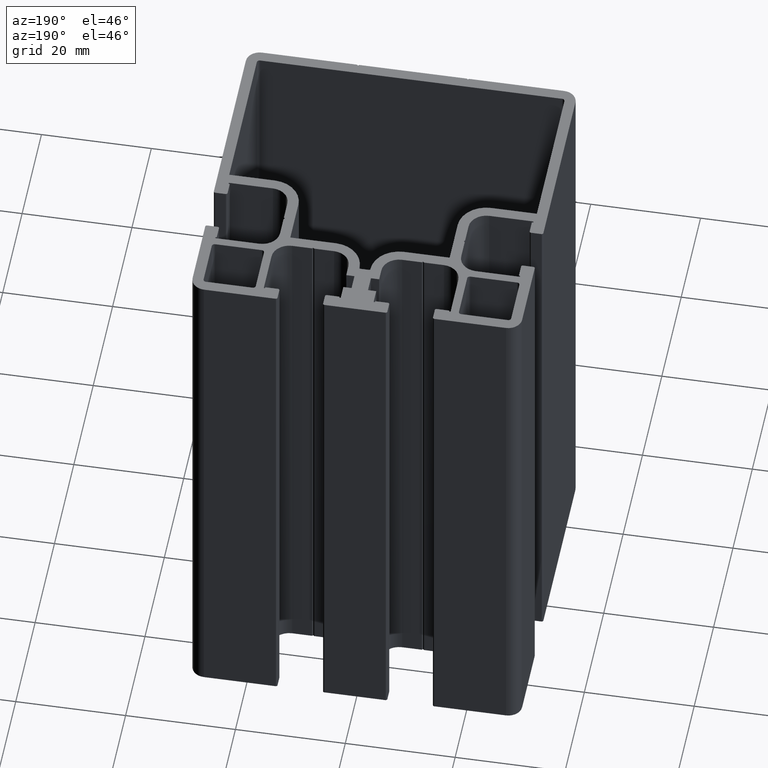
[diagram: clean part render]
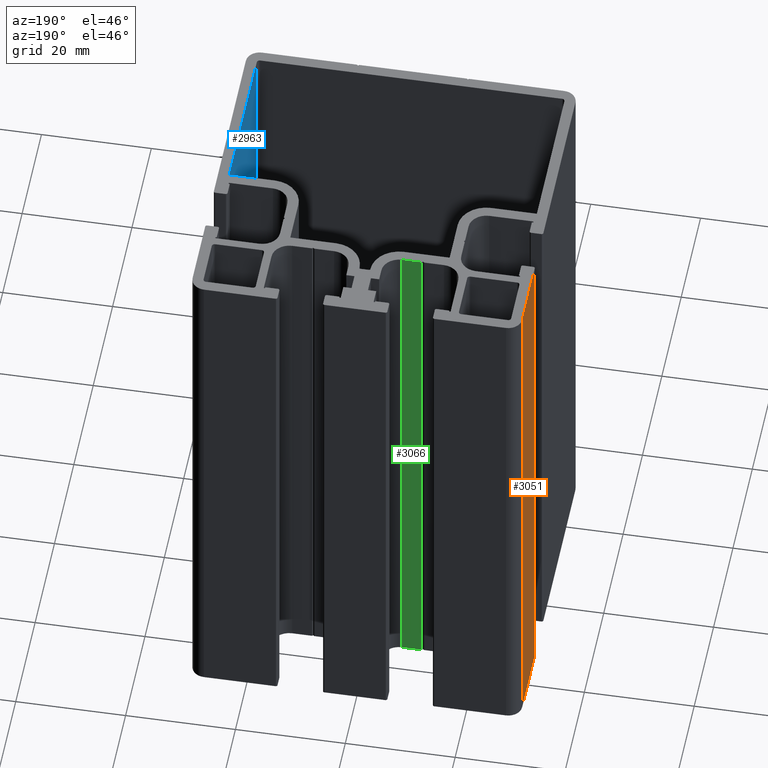
[diagram: same view with three faces highlighted in distinct colors, each labeled with its STEP entity id]
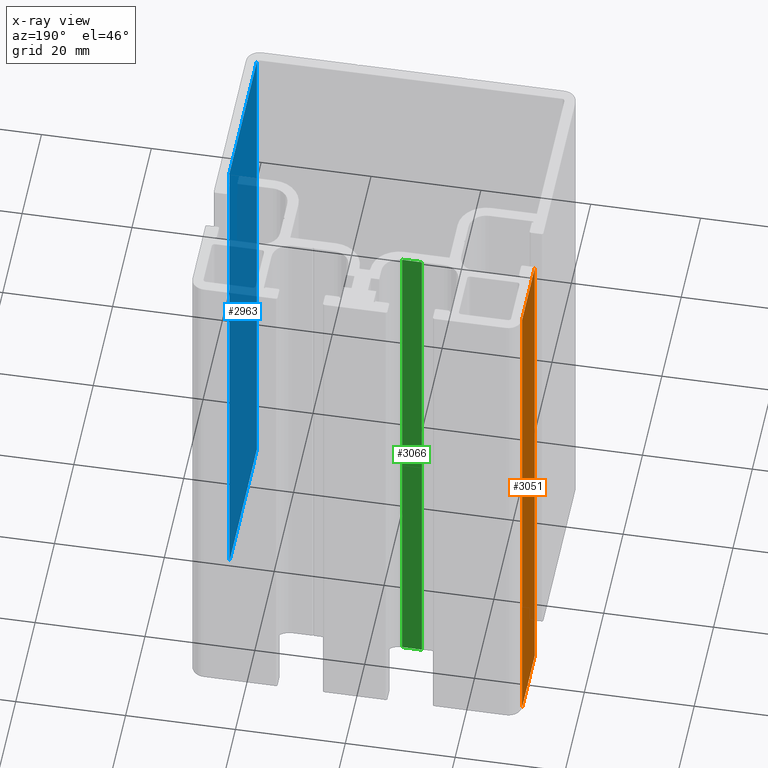
[diagram: x-ray of the same camera — body ghosted, the three highlighted faces saturated]
A machine part, auxiliary view with three faces highlighted in distinct colors.
The next image is the same camera in x-ray (body ghosted, the three faces saturated) — at least one of them is partly hidden behind the body in this view.
Their STEP definitions:

[orange] entity #3051 — the highlighted planar face has unit normal (-1, -0, 0).
#299=FACE_OUTER_BOUND('',#453,.T.);
#453=EDGE_LOOP('',(#2339,#2340,#2341,#2342));
#729=LINE('',#4860,#1065);
#730=LINE('',#4863,#1066);
#731=LINE('',#4865,#1067);
#732=LINE('',#4866,#1068);
#1065=VECTOR('',#3955,100.);
#1066=VECTOR('',#3958,13.05);
#1067=VECTOR('',#3959,13.05);
#1068=VECTOR('',#3960,100.);
#1383=VERTEX_POINT('',#4856);
#1384=VERTEX_POINT('',#4858);
#1385=VERTEX_POINT('',#4862);
#1386=VERTEX_POINT('',#4864);
#1785=EDGE_CURVE('',#1383,#1384,#729,.T.);
#1786=EDGE_CURVE('',#1383,#1385,#730,.T.);
#1787=EDGE_CURVE('',#1386,#1384,#731,.T.);
#1788=EDGE_CURVE('',#1385,#1386,#732,.T.);
#2339=ORIENTED_EDGE('',*,*,#1786,.F.);
#2340=ORIENTED_EDGE('',*,*,#1785,.T.);
#2341=ORIENTED_EDGE('',*,*,#1787,.F.);
#2342=ORIENTED_EDGE('',*,*,#1788,.F.);
#2917=PLANE('',#3287);
#3051=ADVANCED_FACE('',(#299),#2917,.T.);
#3287=AXIS2_PLACEMENT_3D('',#4861,#3956,#3957);
#3955=DIRECTION('',(0.,0.,1.));
#3956=DIRECTION('center_axis',(-1.,-1.36119298038333E-15,0.));
#3957=DIRECTION('ref_axis',(1.4210854715202E-15,-1.,0.));
#3958=DIRECTION('',(-1.36119298038333E-15,1.,0.));
#3959=DIRECTION('',(1.36119298038333E-15,-1.,0.));
#3960=DIRECTION('',(0.,0.,1.));
#4856=CARTESIAN_POINT('',(-30.0000000000019,14.4500000000001,0.));
#4858=CARTESIAN_POINT('',(-30.0000000000019,14.4500000000001,100.));
#4860=CARTESIAN_POINT('',(-30.0000000000019,14.4500000000001,0.));
#4861=CARTESIAN_POINT('Origin',(-30.0000000000019,27.5000000000001,0.));
#4862=CARTESIAN_POINT('',(-30.0000000000019,27.5000000000001,0.));
#4863=CARTESIAN_POINT('',(-30.0000000000019,14.4500000000001,0.));
#4864=CARTESIAN_POINT('',(-30.0000000000019,27.5000000000001,100.));
#4865=CARTESIAN_POINT('',(-30.0000000000019,14.4500000000001,100.));
#4866=CARTESIAN_POINT('',(-30.0000000000019,27.5000000000001,0.));

[blue] entity #2963 — the highlighted planar face has unit normal (1, -0, 0).
#211=FACE_OUTER_BOUND('',#365,.T.);
#365=EDGE_LOOP('',(#1987,#1988,#1989,#1990));
#536=LINE('',#4331,#872);
#538=LINE('',#4335,#874);
#539=LINE('',#4337,#875);
#540=LINE('',#4338,#876);
#872=VECTOR('',#3442,100.);
#874=VECTOR('',#3446,28.5);
#875=VECTOR('',#3447,100.);
#876=VECTOR('',#3448,28.5);
#1207=VERTEX_POINT('',#4328);
#1208=VERTEX_POINT('',#4330);
#1209=VERTEX_POINT('',#4334);
#1210=VERTEX_POINT('',#4336);
#1520=EDGE_CURVE('',#1207,#1208,#536,.T.);
#1522=EDGE_CURVE('',#1209,#1207,#538,.T.);
#1523=EDGE_CURVE('',#1209,#1210,#539,.T.);
#1524=EDGE_CURVE('',#1208,#1210,#540,.T.);
#1987=ORIENTED_EDGE('',*,*,#1522,.F.);
#1988=ORIENTED_EDGE('',*,*,#1523,.T.);
#1989=ORIENTED_EDGE('',*,*,#1524,.F.);
#1990=ORIENTED_EDGE('',*,*,#1520,.F.);
#2865=PLANE('',#3127);
#2963=ADVANCED_FACE('',(#211),#2865,.F.);
#3127=AXIS2_PLACEMENT_3D('',#4333,#3444,#3445);
#3442=DIRECTION('',(0.,0.,1.));
#3444=DIRECTION('center_axis',(1.,-1.55820775385987E-16,0.));
#3445=DIRECTION('ref_axis',(0.,1.,0.));
#3446=DIRECTION('',(1.55820775385987E-16,1.,0.));
#3447=DIRECTION('',(0.,0.,1.));
#3448=DIRECTION('',(-1.55820775385987E-16,-1.,0.));
#4328=CARTESIAN_POINT('',(28.,1.,0.));
#4330=CARTESIAN_POINT('',(28.,0.999999999999999,100.));
#4331=CARTESIAN_POINT('',(28.,1.,0.));
#4333=CARTESIAN_POINT('Origin',(28.,-27.5,0.));
#4334=CARTESIAN_POINT('',(28.,-27.5,0.));
#4335=CARTESIAN_POINT('',(28.,-10.8727550179065,0.));
#4336=CARTESIAN_POINT('',(28.,-27.5,100.));
#4337=CARTESIAN_POINT('',(28.,-27.5,0.));
#4338=CARTESIAN_POINT('',(28.,-10.8727550179065,100.));

[green] entity #3066 — the highlighted planar face has unit normal (-0, 1, 0).
#314=FACE_OUTER_BOUND('',#468,.T.);
#468=EDGE_LOOP('',(#2399,#2400,#2401,#2402));
#762=LINE('',#4950,#1098);
#763=LINE('',#4953,#1099);
#764=LINE('',#4955,#1100);
#765=LINE('',#4956,#1101);
#1098=VECTOR('',#4042,100.);
#1099=VECTOR('',#4045,3.59999999999999);
#1100=VECTOR('',#4046,3.59999999999999);
#1101=VECTOR('',#4047,100.);
#1413=VERTEX_POINT('',#4946);
#1414=VERTEX_POINT('',#4948);
#1415=VERTEX_POINT('',#4952);
#1416=VERTEX_POINT('',#4954);
#1830=EDGE_CURVE('',#1413,#1414,#762,.T.);
#1831=EDGE_CURVE('',#1413,#1415,#763,.T.);
#1832=EDGE_CURVE('',#1416,#1414,#764,.T.);
#1833=EDGE_CURVE('',#1415,#1416,#765,.T.);
#2399=ORIENTED_EDGE('',*,*,#1831,.F.);
#2400=ORIENTED_EDGE('',*,*,#1830,.T.);
#2401=ORIENTED_EDGE('',*,*,#1832,.F.);
#2402=ORIENTED_EDGE('',*,*,#1833,.F.);
#2926=PLANE('',#3314);
#3066=ADVANCED_FACE('',(#314),#2926,.T.);
#3314=AXIS2_PLACEMENT_3D('',#4951,#4043,#4044);
#4042=DIRECTION('',(0.,0.,1.));
#4043=DIRECTION('center_axis',(-6.16790569236199E-16,1.,0.));
#4044=DIRECTION('ref_axis',(-1.,-7.105427357601E-16,0.));
#4045=DIRECTION('',(1.,6.16790569236199E-16,0.));
#4046=DIRECTION('',(-1.,-6.16790569236199E-16,0.));
#4047=DIRECTION('',(0.,0.,1.));
#4946=CARTESIAN_POINT('',(-9.80000000000144,16.499999999998,0.));
#4948=CARTESIAN_POINT('',(-9.80000000000144,16.499999999998,100.));
#4950=CARTESIAN_POINT('',(-9.80000000000144,16.499999999998,0.));
#4951=CARTESIAN_POINT('Origin',(-6.20000000000145,16.499999999998,0.));
#4952=CARTESIAN_POINT('',(-6.20000000000145,16.499999999998,0.));
#4953=CARTESIAN_POINT('',(-9.80000000000144,16.499999999998,0.));
#4954=CARTESIAN_POINT('',(-6.20000000000145,16.499999999998,100.));
#4955=CARTESIAN_POINT('',(-9.80000000000144,16.499999999998,100.));
#4956=CARTESIAN_POINT('',(-6.20000000000145,16.499999999998,0.));